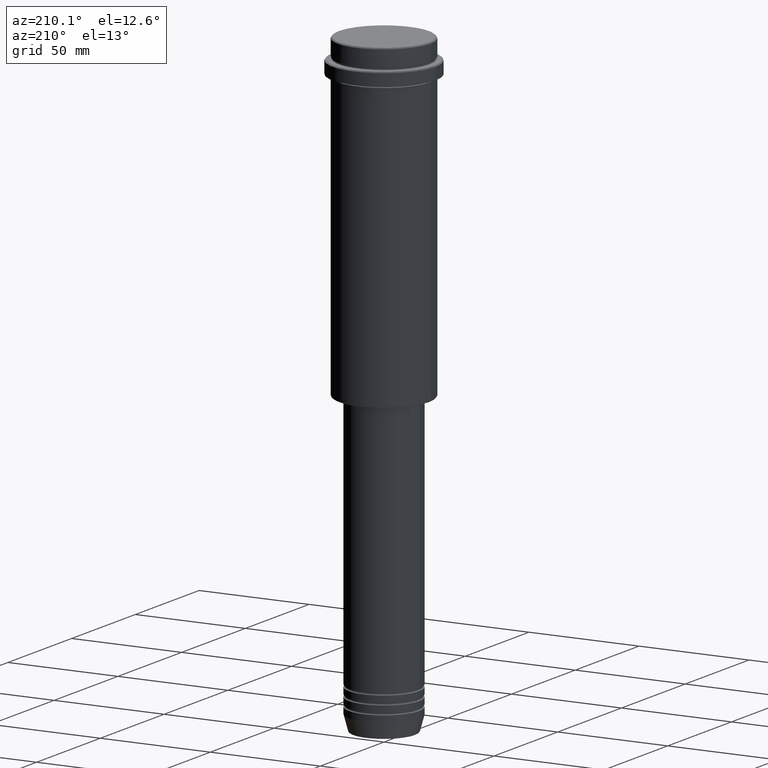
[diagram: clean part render]
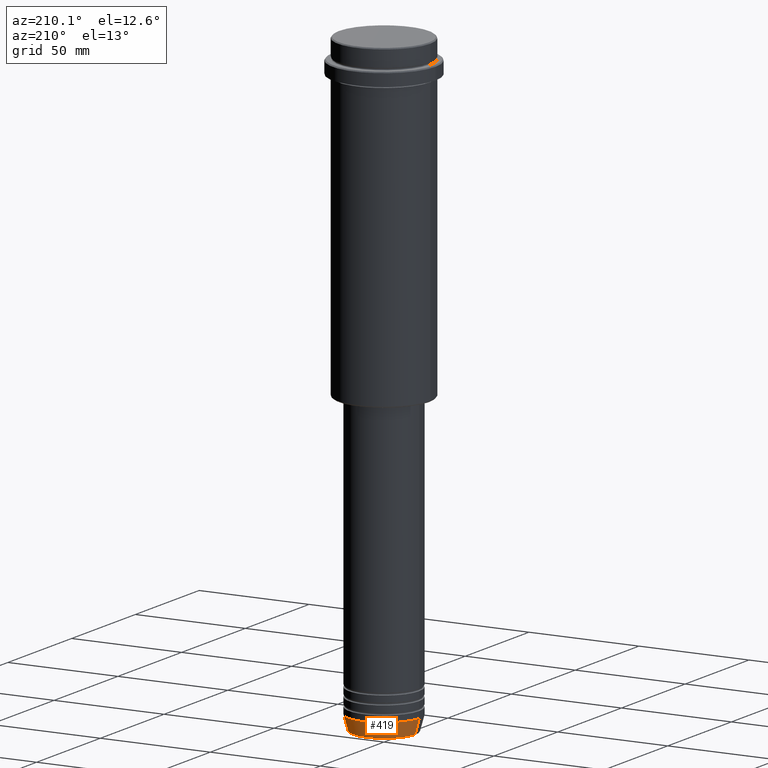
[diagram: same view with one face highlighted and labeled with its STEP entity id]
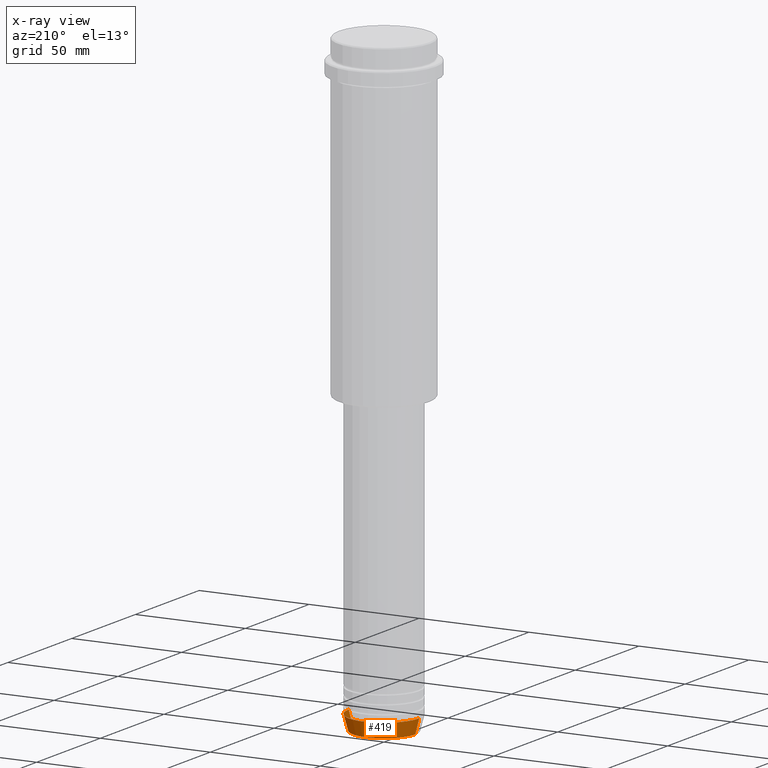
[diagram: x-ray of the same camera — body ghosted, the highlighted face saturated]
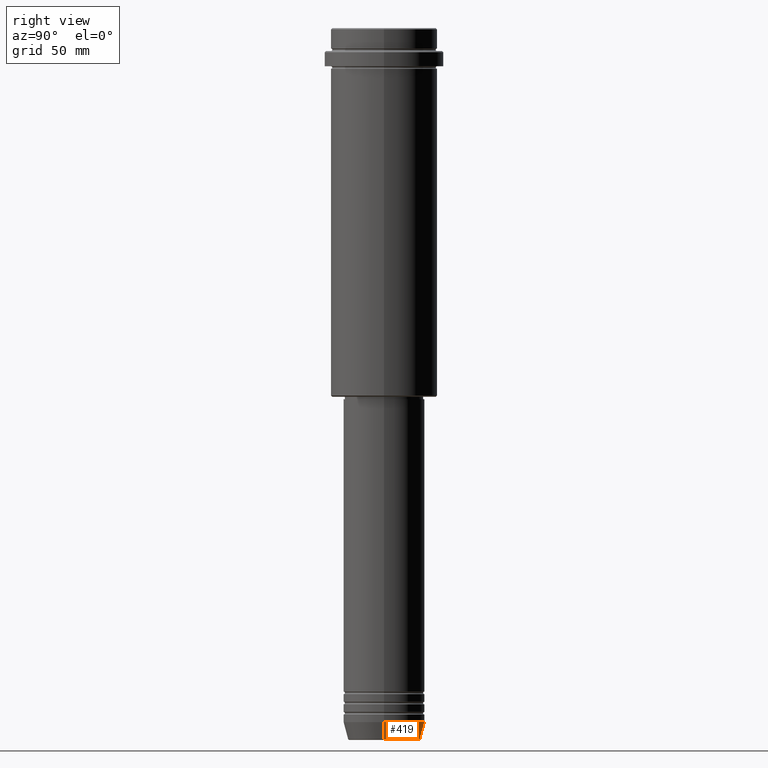
[diagram: same view with one face highlighted and labeled with its STEP entity id]
A machine part, auxiliary view. The second image highlights one B-rep face of the part: STEP entity #419.
The next image is the same camera in x-ray: the body ghosted, the highlighted face saturated — about 0% of this face is hidden behind the body in this view.
A second angle (right view) of the same face is appended — the face is thin or edge-on in the first view.
In plain terms, the highlighted conical surface has half-angle 15 deg.
Its self-contained STEP definition (entity closure, byte-faithful):
#32 = CARTESIAN_POINT ( 'NONE',  ( 0.000000000000000000, 0.000000000000000000, -273.0000000000000000 ) ) ;
#48 = AXIS2_PLACEMENT_3D ( 'NONE', #109, #235, #790 ) ;
#109 = CARTESIAN_POINT ( 'NONE',  ( 0.000000000000000000, 0.000000000000000000, -279.6294095225512706 ) ) ;
#205 = CIRCLE ( 'NONE', #1084, 16.00000000000000000 ) ;
#222 = CARTESIAN_POINT ( 'NONE',  ( -16.00000000000000000, 1.959434878635765131E-15, -273.0000000000000000 ) ) ;
#235 = DIRECTION ( 'NONE',  ( -0.000000000000000000, -0.000000000000000000, 1.000000000000000000 ) ) ;
#276 = VERTEX_POINT ( 'NONE', #222 ) ;
#334 = LINE ( 'NONE', #1366, #945 ) ;
#376 = CARTESIAN_POINT ( 'NONE',  ( 14.22365507213718772, 0.000000000000000000, -279.6294095225512706 ) ) ;
#392 = EDGE_CURVE ( 'NONE', #1385, #909, #851, .T. ) ;
#419 = ADVANCED_FACE ( 'NONE', ( #1054 ), #424, .T. ) ;
#424 = CONICAL_SURFACE ( 'NONE', #741, 16.00000000000000000, 0.2617993877991500740 ) ;
#552 = EDGE_CURVE ( 'NONE', #632, #276, #205, .T. ) ;
#589 = ORIENTED_EDGE ( 'NONE', *, *, #648, .F. ) ;
#632 = VERTEX_POINT ( 'NONE', #1291 ) ;
#648 = EDGE_CURVE ( 'NONE', #1385, #632, #334, .T. ) ;
#693 = DIRECTION ( 'NONE',  ( -0.2588190451025213501, 3.169619151431772337E-17, 0.9659258262890680902 ) ) ;
#702 = DIRECTION ( 'NONE',  ( -0.000000000000000000, -0.000000000000000000, 1.000000000000000000 ) ) ;
#726 = CARTESIAN_POINT ( 'NONE',  ( -14.22365507213718772, 1.850665122131323337E-15, -279.6294095225512706 ) ) ;
#741 = AXIS2_PLACEMENT_3D ( 'NONE', #956, #1177, #1163 ) ;
#746 = EDGE_CURVE ( 'NONE', #909, #276, #1335, .T. ) ;
#790 = DIRECTION ( 'NONE',  ( 1.000000000000000000, 0.000000000000000000, 0.000000000000000000 ) ) ;
#813 = DIRECTION ( 'NONE',  ( 1.000000000000000000, 0.000000000000000000, 0.000000000000000000 ) ) ;
#830 = VECTOR ( 'NONE', #693, 1000.000000000000000 ) ;
#851 = CIRCLE ( 'NONE', #48, 14.22365507213718772 ) ;
#884 = ORIENTED_EDGE ( 'NONE', *, *, #552, .F. ) ;
#909 = VERTEX_POINT ( 'NONE', #726 ) ;
#945 = VECTOR ( 'NONE', #1041, 1000.000000000000000 ) ;
#956 = CARTESIAN_POINT ( 'NONE',  ( 0.000000000000000000, 0.000000000000000000, -273.0000000000000000 ) ) ;
#1026 = ORIENTED_EDGE ( 'NONE', *, *, #392, .T. ) ;
#1041 = DIRECTION ( 'NONE',  ( 0.2588190451025213501, 0.000000000000000000, 0.9659258262890680902 ) ) ;
#1054 = FACE_OUTER_BOUND ( 'NONE', #1134, .T. ) ;
#1084 = AXIS2_PLACEMENT_3D ( 'NONE', #32, #702, #813 ) ;
#1134 = EDGE_LOOP ( 'NONE', ( #1026, #1363, #884, #589 ) ) ;
#1163 = DIRECTION ( 'NONE',  ( 1.000000000000000000, 0.000000000000000000, 0.000000000000000000 ) ) ;
#1177 = DIRECTION ( 'NONE',  ( -0.000000000000000000, -0.000000000000000000, 1.000000000000000000 ) ) ;
#1239 = CARTESIAN_POINT ( 'NONE',  ( -16.00000000000000000, 1.959434878635765131E-15, -273.0000000000000000 ) ) ;
#1291 = CARTESIAN_POINT ( 'NONE',  ( 16.00000000000000000, 0.000000000000000000, -273.0000000000000000 ) ) ;
#1335 = LINE ( 'NONE', #1239, #830 ) ;
#1363 = ORIENTED_EDGE ( 'NONE', *, *, #746, .T. ) ;
#1366 = CARTESIAN_POINT ( 'NONE',  ( 16.00000000000000000, 0.000000000000000000, -273.0000000000000000 ) ) ;
#1385 = VERTEX_POINT ( 'NONE', #376 ) ;